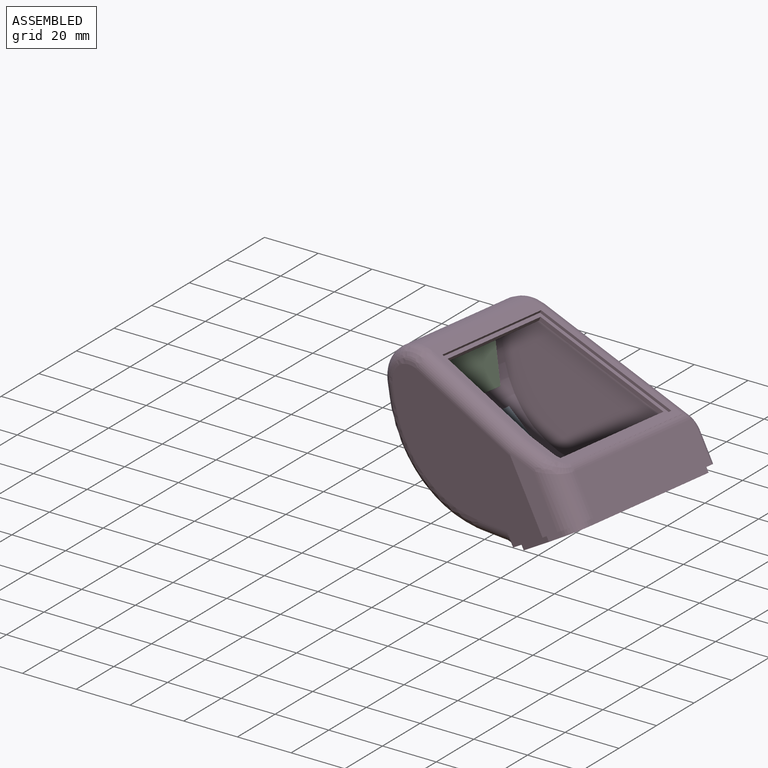
[diagram: assembled view]
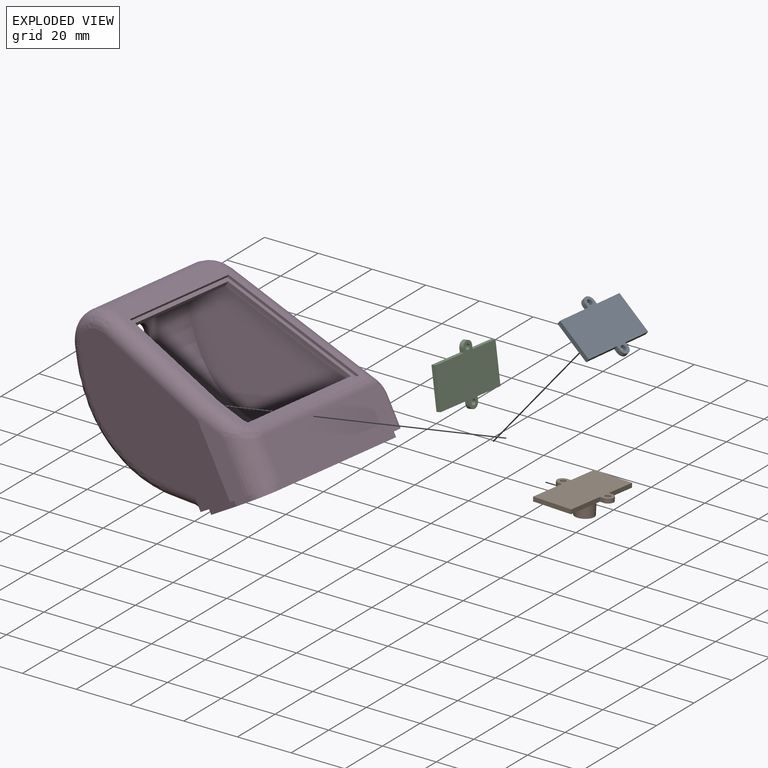
[diagram: exploded view]
GUIDED TOUR — MATED ASSEMBLY (Onshape document 2a88d903c5abb82e0b007ddc, AutoMate assembly 2a88d903c5abb82e0b007ddc_f0a99ed461aa51eab761f1ac_82e6ee3b428fb07e53744e05_default)

This assembly has 4 components, labeled P0..P3 below (a component is one placed occurrence of a part; the same part can appear more than once), held together by 3 mates. A mate is a constraint between two components; its type names the relative motion it leaves free:
  REVOLUTE — leaves rotation about the listed axis free (a hinge).
Axis/direction vectors are unit vectors and 'through' points are millimeter coordinates, both in the assembly's world frame.

MATES
  1. REVOLUTE "Revolute 3": P3 <-> P1, axis (0.001, 0.058, 0.998) through (-35.59, 45.75, -22.43) mm
  2. REVOLUTE "Revolute 2": P0 <-> P3, axis (-0.642, -0.009, -0.767) through (-54.24, 47.57, -9.32) mm
  3. REVOLUTE "Revolute 1": P2 <-> P3, axis (-0.982, 0.045, -0.183) through (-60.21, 49.18, 12.61) mm

ASSEMBLY ORDER
  1. P2 — the base component [order verified]
  2. P3 [order verified]
  3. P0 [order verified]
  4. P1 [order verified]
(P0 verified with a relaxed clearance tolerance: the source model stores slight part interference there.)
Order-tag legend:
  [order verified] — this step's position reverses a verified removal order: the component was checked to insert without passing through the ones already placed.

Of the 4 components, 3 carry the full construction recipe — the FeatureScript program that regenerates the part's solid from scratch; the rest are supplied as boundary geometry only.
Each toured component is shown spotlighted twice — in the assembled view, then in the exploded view, where a leader line traces a displaced component back to its assembled socket (saturated green if recipe-attached, orange if geometry-only; every other component desaturated gray) — followed by its recipe or geometry summary and the mates that hold it.
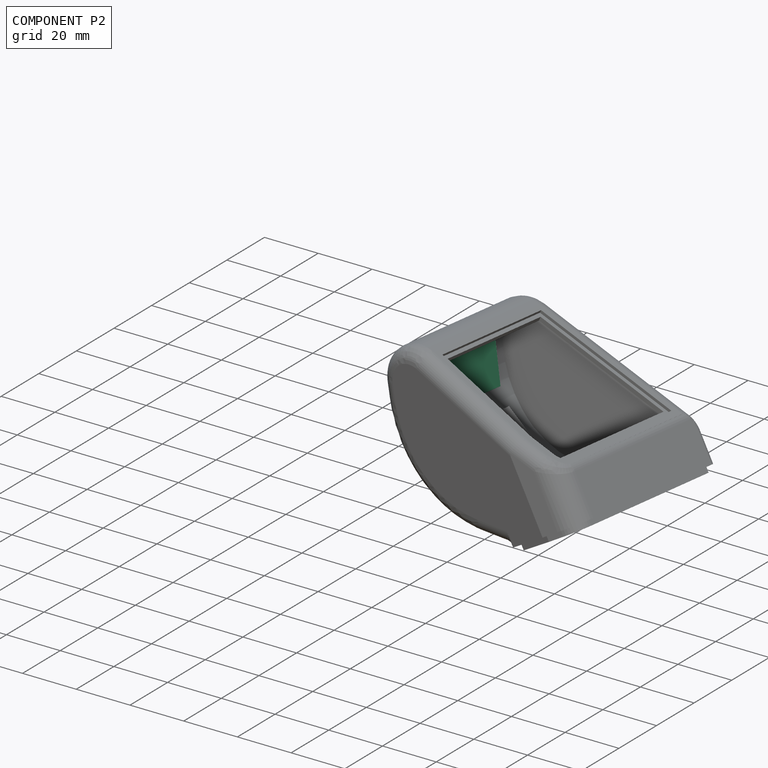
[diagram: component P2 — assembled]
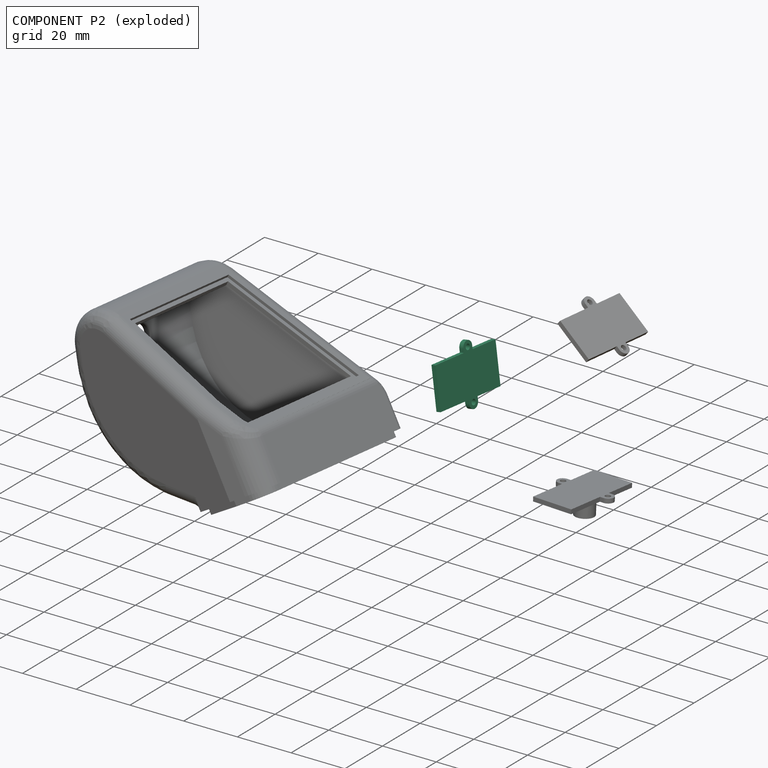
[diagram: component P2 — exploded]
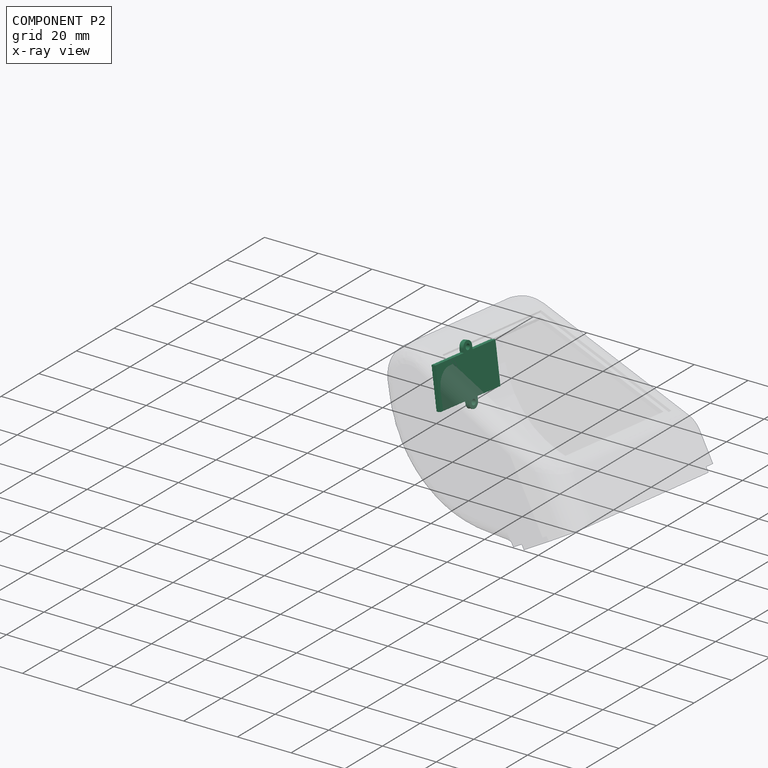
[diagram: component P2 — x-ray view]
COMPONENT P2 — same part as P0 (CADFS 00294076); its construction recipe is shown at P0.
Held by: REVOLUTE mate "Revolute 1" to P3.
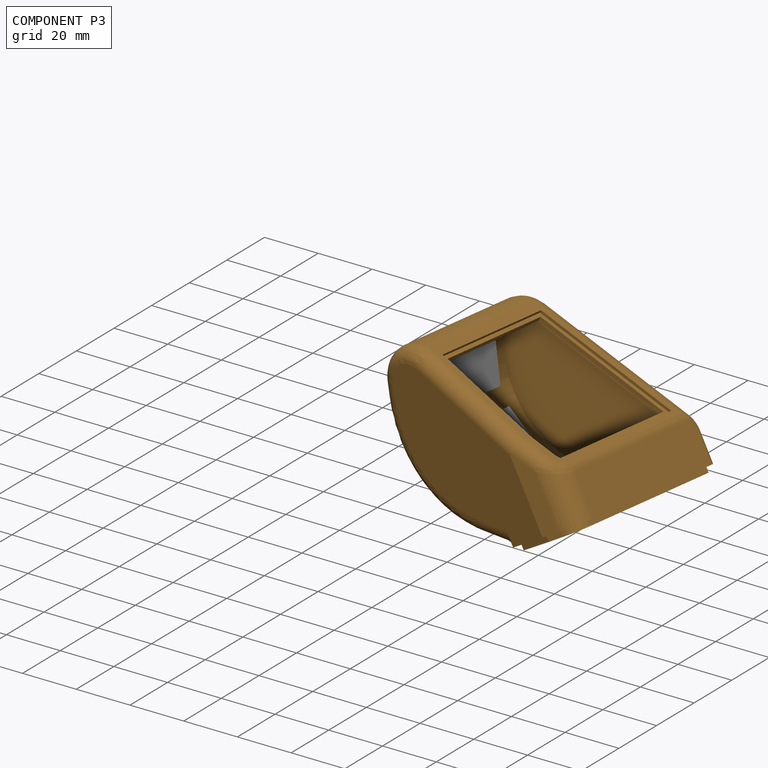
[diagram: component P3 — assembled]
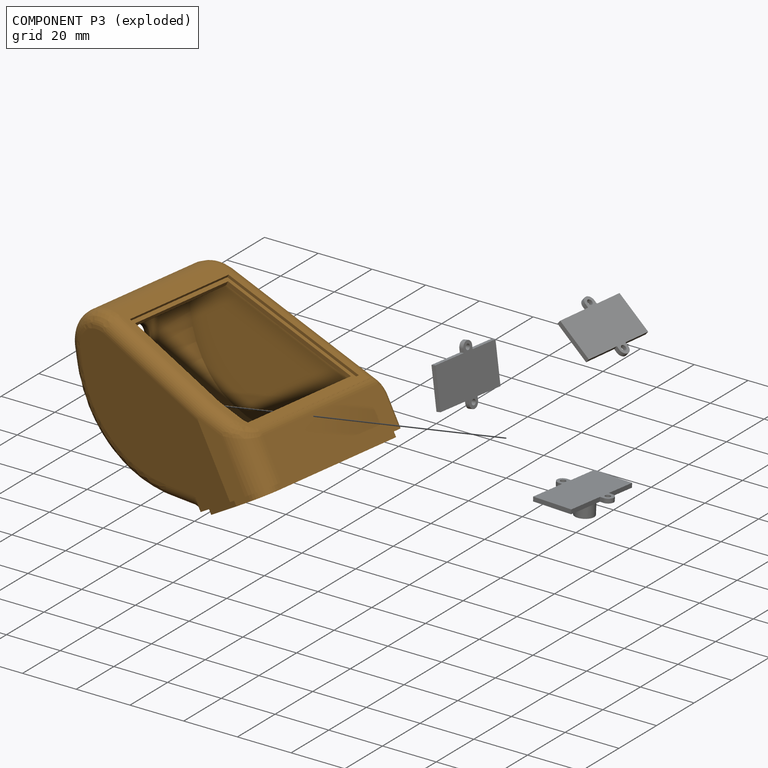
[diagram: component P3 — exploded]
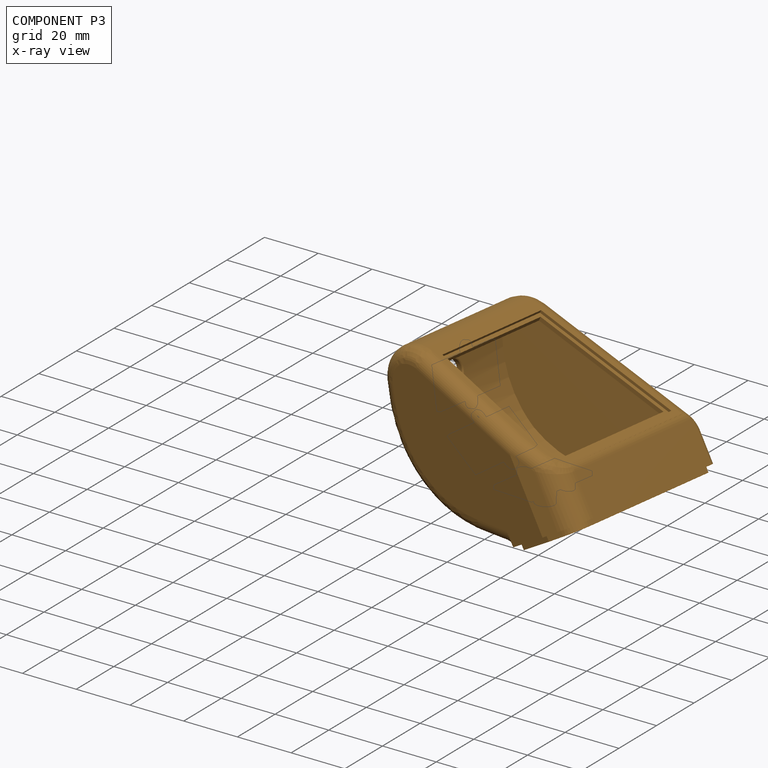
[diagram: component P3 — x-ray view]
COMPONENT P3 — geometry summary (no construction recipe available for this part):
  bounding box: 71.4 x 70.8 x 68.8 mm
  B-rep topology: 1 solid, 129 faces, 661 edges
  volume: 32855 mm^3 (9% of its bounding box)
Held by: REVOLUTE mate "Revolute 3" to P1; REVOLUTE mate "Revolute 2" to P0; REVOLUTE mate "Revolute 1" to P2.
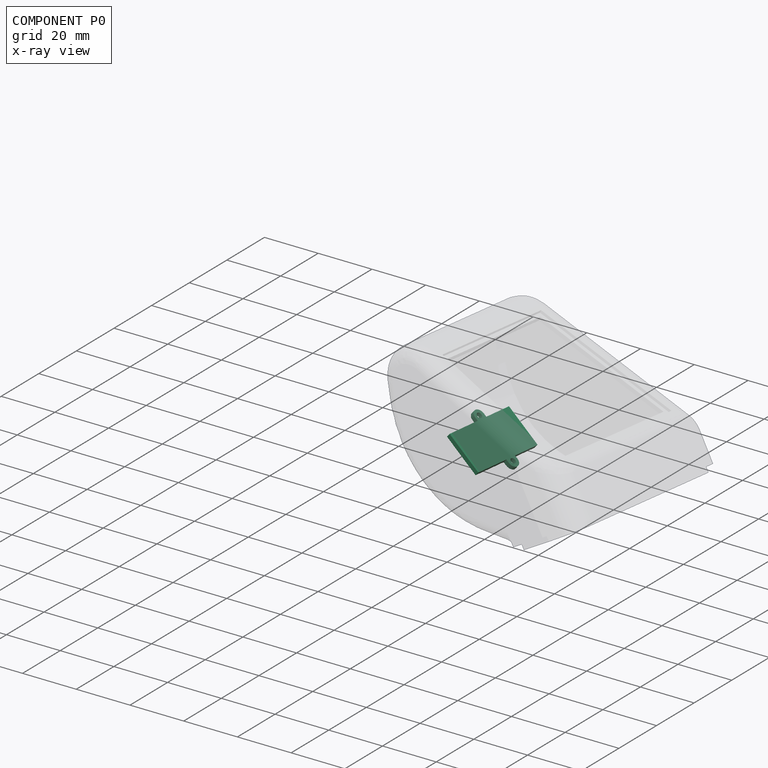
[diagram: component P0 — x-ray view]
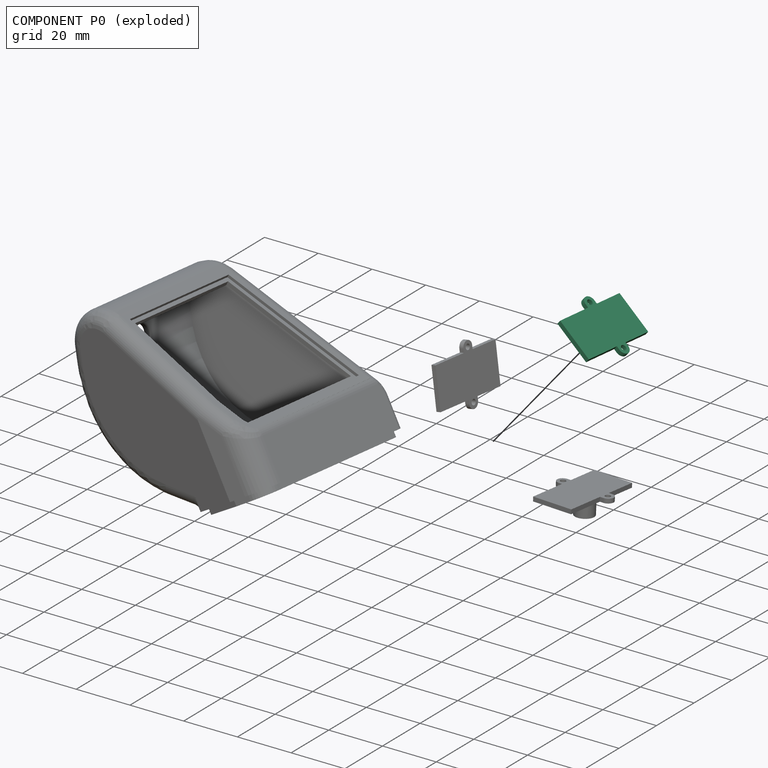
[diagram: component P0 — exploded]
COMPONENT P0 — recipe-attached (CADFS 00294076, mesh-verified: the recipe's output STEP matches this component's geometry to below the mesh-comparison resolution (tessellation chordal tolerance ~0.0566 mm)).
Held by: REVOLUTE mate "Revolute 2" to P3.
Construction recipe (FeatureScript — the CAD program that rebuilds this solid; sketch coordinates are in the units given by the * unit suffixes, e.g. mm):

FeatureScript 1511;
import(path : "onshape/std/geometry.fs", version : "1511.0");
import(path : "onshape/std/common.fs", version : "1511.0");
const mm = millimeter;
const VERTEX = EntityType.VERTEX;
const EDGE = EntityType.EDGE;
const FACE = EntityType.FACE;
const BODY = EntityType.BODY;
function v(x, y){return vector(x, y);}
function OD(order){return orderDisambiguation(order);}
function OSD(set){return originalSetDisambiguation(set);}
function TD(topology){return topologyDisambiguation(topology);}
function TDD(query){return trueDependencyDisambiguation(query);}
function sQuery(a, b, c) {return sketchEntityQuery(a, b, c);}

annotation { "Feature Type Name" : "Feature", "Feature Type Description" : "" }
export const myFeature = defineFeature(function(context is Context, id is Id, definition is map)
    precondition{}
    {
        {
            var Q0;
            Q0=qCreatedBy(makeId("Top.planeOp"),FACE);
            var sketch = newSketch(context, id + "F0", { "sketchPlane" : qUnion([Q0])});
            skLineSegment(sketch, "E0.bottom", {"start": v(-23.3, 24.89) * mm, "end": v(-8.37, 24.89) * mm});
            skLineSegment(sketch, "E0.top", {"start": v(-23.3, -4.67) * mm, "end": v(-8.37, -4.67) * mm});
            skLineSegment(sketch, "E0.left", {"start": v(-23.3, 24.89) * mm, "end": v(-23.3, 13.61) * mm});
            skLineSegment(sketch, "E0.right", {"start": v(-8.37, 24.89) * mm, "end": v(-8.37, 13.61) * mm});
            skLineSegment(sketch, "E1", {"start": v(-23.3, 13.61) * mm, "end": v(-24.63, 13.61) * mm});
            skLineSegment(sketch, "E2", {"start": v(-23.3, 9.3) * mm, "end": v(-24.63, 9.3) * mm});
            skArc(sketch, "E3", {"start": v(-24.63, 13.61) * mm, "mid": v(-26.78, 11.46) * mm, "end": v(-24.63, 9.3) * mm});
            skLineSegment(sketch, "E4", {"start": v(-8.37, 13.61) * mm, "end": v(-7.05, 13.61) * mm});
            skLineSegment(sketch, "E5", {"start": v(-8.37, 9.3) * mm, "end": v(-7.05, 9.3) * mm});
            skArc(sketch, "E6", {"start": v(-7.05, 9.3) * mm, "mid": v(-4.9, 11.46) * mm, "end": v(-7.05, 13.61) * mm});
            skCircle(sketch, "E7", {"center": v(-24.63, 11.46) * mm, "radius": 1 * mm});
            skCircle(sketch, "E8", {"center": v(-7.05, 11.46) * mm, "radius": 1 * mm});
            skLineSegment(sketch, "E9.trimOffspring", {"start": v(-23.3, 9.3) * mm, "end": v(-23.3, -4.67) * mm});
            skLineSegment(sketch, "E10.trimOffspring", {"start": v(-8.37, 9.3) * mm, "end": v(-8.37, -4.67) * mm});
            skLineSegment(sketch, "E11", {"start": v(-24.63, 11.46) * mm, "end": v(-7.05, 11.46) * mm, "construction": true});
            skCircle(sketch, "E12", {"center": v(-15.84, 11.46) * mm, "radius": 3.5 * mm});
            skSolve(sketch);
        }
        {
            var Q0;
            Q0=makeQuery(id+"F0.imprint","IMPRINT",FACE,{"disambiguationData":[TD([[makeQuery(id+"F0.imprint","IMPRINT",EDGE,{"derivedFrom":sQuery(id+"F0.wireOp",EDGE,"E0.bottom")}),-1.0]])]});
            var Q1;
            Q1=makeQuery(id+"F0.imprint","IMPRINT",FACE,{"disambiguationData":[TD([[makeQuery(id+"F0.imprint","IMPRINT",EDGE,{"derivedFrom":sQuery(id+"F0.wireOp",EDGE,"E12")}),1.0]])]});
            extrude(context, id + "F1", {"entities" : qUnion([Q0, Q1]), "depth" : 1.6 * mm});
        }
        {
            var Q0;
            Q0=makeQuery(id+"F0.imprint","IMPRINT",FACE,{"disambiguationData":[TD([[makeQuery(id+"F0.imprint","IMPRINT",EDGE,{"derivedFrom":sQuery(id+"F0.wireOp",EDGE,"E12")}),1.0]])]});
            extrude(context, id + "F2", {"entities" : qUnion([Q0]), "operationType" : NewBodyOperationType.ADD, "oppositeDirection" : true, "depth" : 7 * mm});
        }
    });
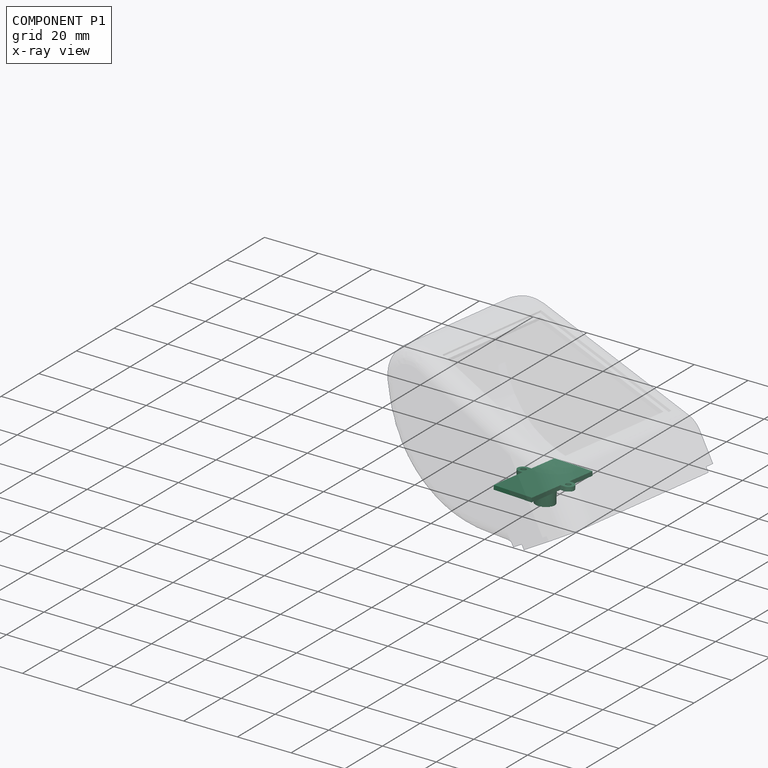
[diagram: component P1 — x-ray view]
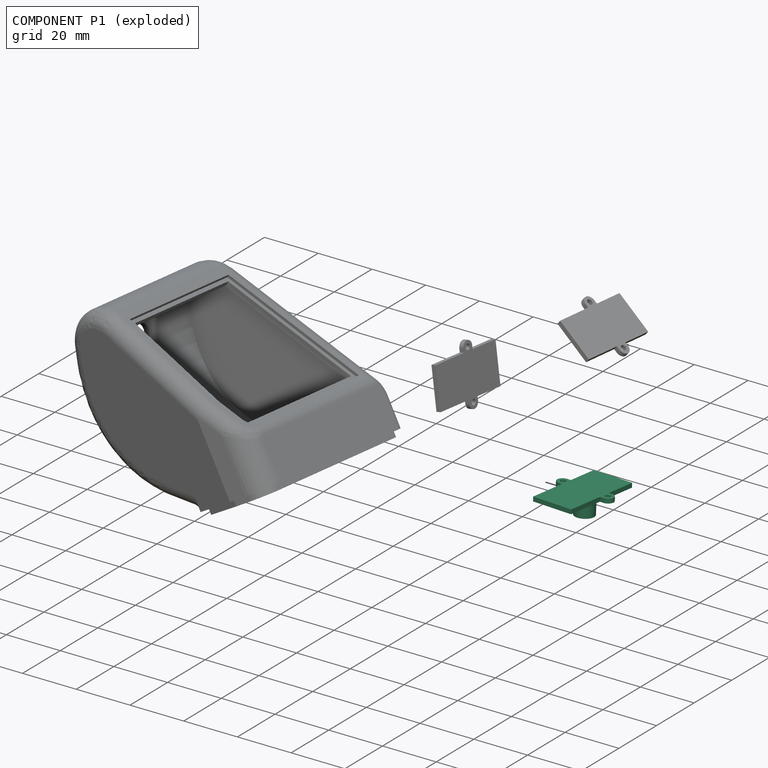
[diagram: component P1 — exploded]
COMPONENT P1 — same part as P0 (CADFS 00294076); its construction recipe is shown at P0.
Held by: REVOLUTE mate "Revolute 3" to P3.
PROVENANCE & LICENSES
Assembly (occurrences, transforms, mates, per-part STEP geometry): AutoMate dataset, Zenodo record 7776208, CC0.
Construction recipes: CADFS (HuggingFace VladPyatov/CADFS, CC-BY-4.0, layered over the ABC dataset), FeatureScript reconstruction programs keyed by ABC model id.
Join: ABC meta listings map ABC model id -> Onshape documentId; within a shared document, parts are matched by geometric signature (bounding-box dims + volume at 0.1% relative tolerance, exact B-rep face/solid counts).
Verification: 3 of this assembly's 4 components carry a recipe attachment, and every attachment is mesh-verified: the CADFS STEP and the AutoMate member STEP were compared as meshes in their shared local frame (symmetric sampled-point-to-mesh distance); worst across the 3 attachments: below the mesh-comparison resolution (tessellation chordal tolerance ~0.0566 mm) on a 38 mm part.
Renders: orthographic iso camera (az 35 / el 25); the floor grid conveys scale (grid pitch printed in each image; no ruler). In the exploded view each component is displaced by its stored offset vector: the offsets alone carry the explosion direction (mate normal/axis signs are not orientation cues and do not encode it), and separation distances are assigned per mate-chain, not proportionally to assembly-order depth.
